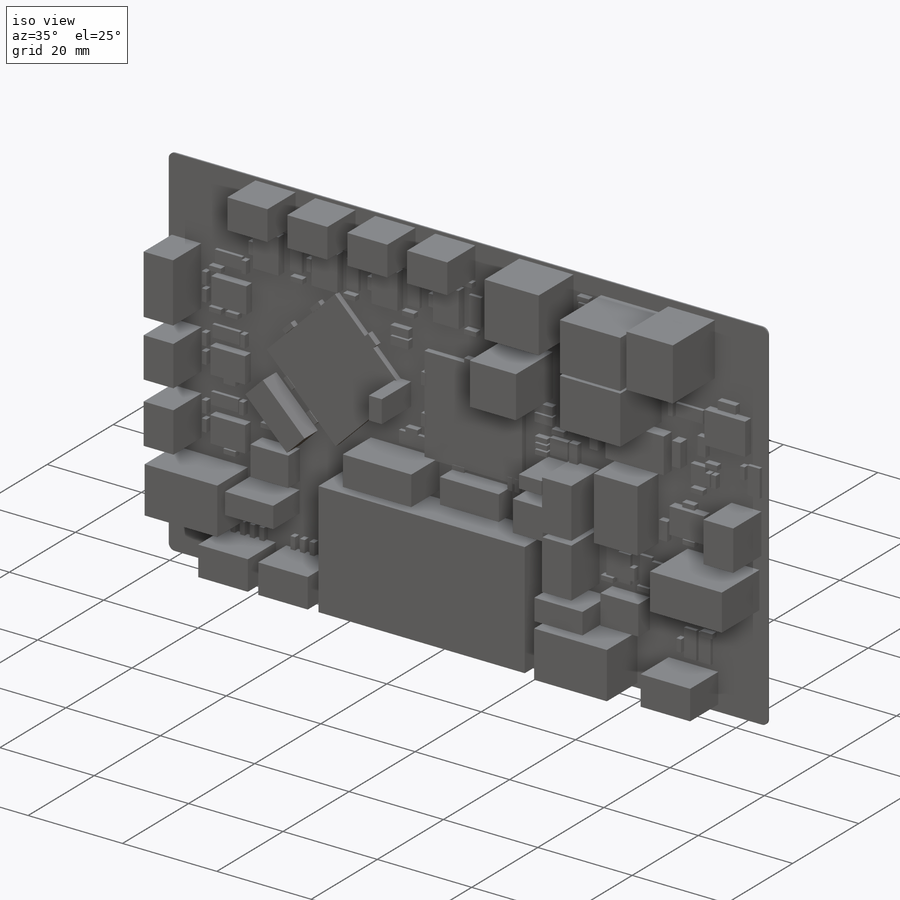
[diagram: iso view]
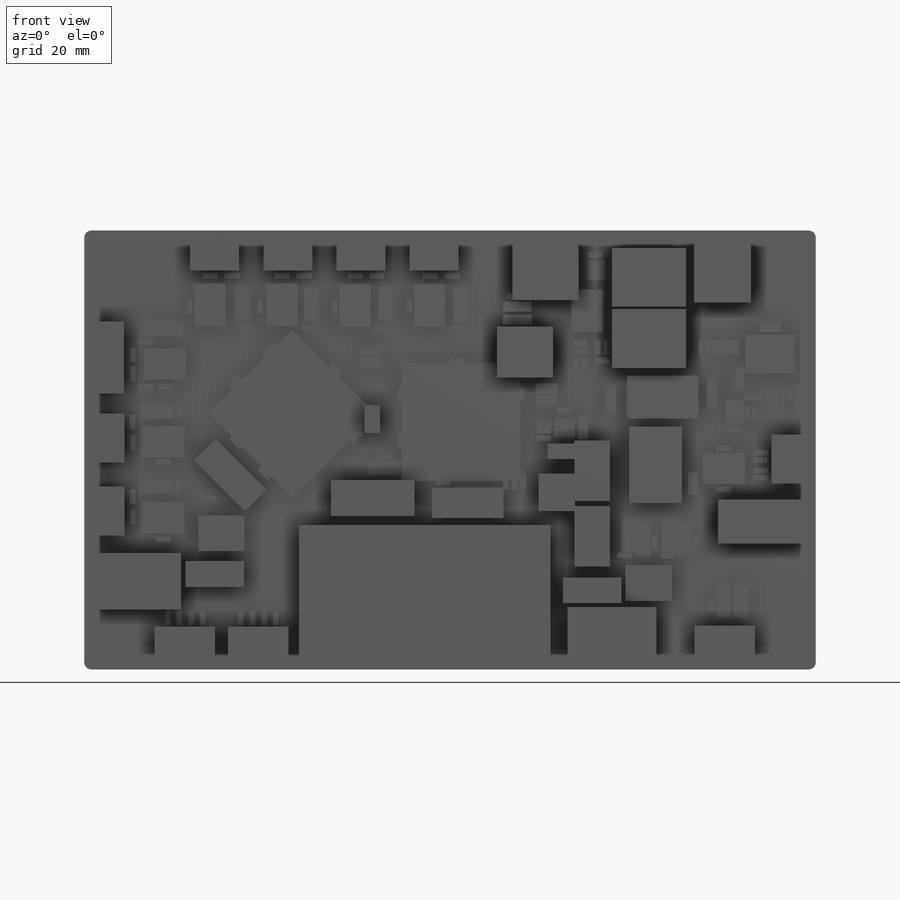
[diagram: front view]
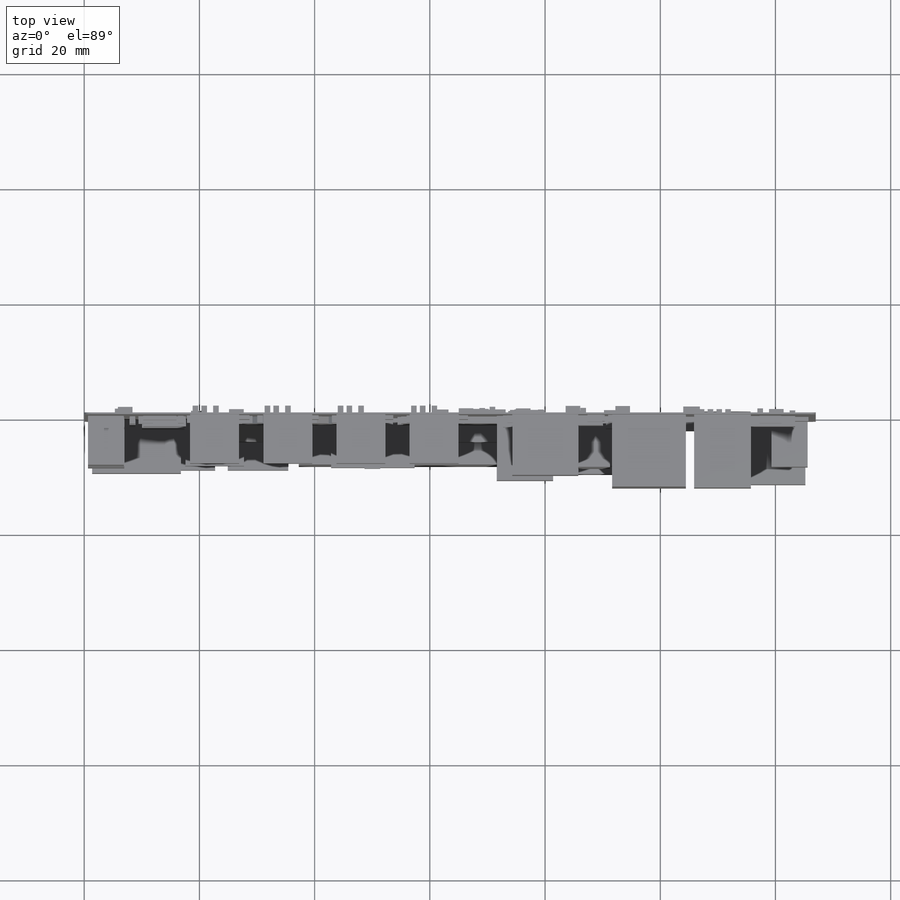
[diagram: top view]
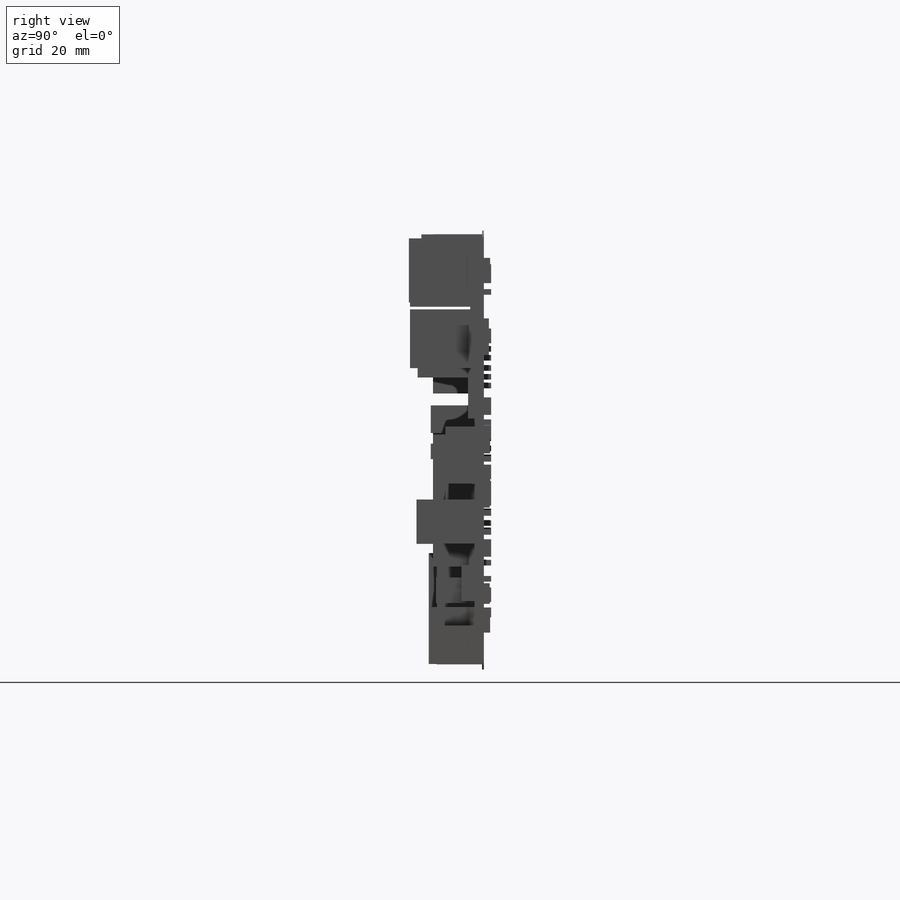
[diagram: right view]
SOLIDWORKS PART (.sldprt)
format: sldprt  version: not decoded by parser v0  size: 5,025,280 bytes
history: native  units: mm
features: sketch x245, extrude x235, material x1, plane x1 (+16 scaffold rows collapsed)
feature tree (498):
  scaffold x16  (default folders/planes/origin — collapsed)
  material  "Material <not specified>"
  sketch  "Sketch1"
  extrude  "BOARD"  Depth=0.32258mm
  plane  "Plane1"
  sketch  "Sketch2"
  extrude  "SOIC8A-1"  Depth=1.7526mm
  sketch  "Sketch3"
  extrude  "IND_MURATA_1200RS-1"  Depth=10.5156mm
  sketch  "Sketch4"
  extrude  "1206-R-1"  Depth=2.032mm
  sketch  "Sketch5"
  extrude  "1206-R-2"  Depth=2.032mm
  sketch  "Sketch6"
  extrude  "1206-R-3"  Depth=2.032mm
  sketch  "Sketch7"
  extrude  "0603-R-1"  Depth=1.27mm
  sketch  "Sketch8"
  extrude  "CAP_EL_RADIAL_8MM_5MMP-1"  Depth=11.176mm
  sketch  "Sketch9"
  extrude  "0603-R-2"  Depth=1.27mm
  sketch  "Sketch10"
  extrude  "0603-R-3"  Depth=1.27mm
  sketch  "Sketch11"
  extrude  "0603-R-4"  Depth=1.27mm
  sketch  "Sketch12"
  extrude  "0603-R-5"  Depth=1.27mm
  sketch  "Sketch13"
  extrude  "0603-R-6"  Depth=1.27mm
  sketch  "Sketch14"
  extrude  "0603-R-7"  Depth=1.27mm
  sketch  "Sketch15"
  extrude  "0603-R-8"  Depth=1.27mm
  sketch  "Sketch16"
  extrude  "0603-R-9"  Depth=1.27mm
  sketch  "Sketch17"
  extrude  "0603-R-10"  Depth=1.27mm
  sketch  "Sketch18"
  extrude  "SOT-23-1"  Depth=1.0922mm
  sketch  "Sketch19"
  extrude  "0603-R-11"  Depth=1.27mm
  sketch  "Sketch20"
  extrude  "0603-R-12"  Depth=1.27mm
  sketch  "Sketch21"
  extrude  "TO-252AA-1"  Depth=2.413mm
  sketch  "Sketch22"
  extrude  "1206-R-4"  Depth=2.032mm
  sketch  "Sketch23"
  extrude  "1206-R-5"  Depth=2.032mm
  sketch  "Sketch24"
  extrude  "0805_POL-1"  Depth=0.7112mm
  sketch  "Sketch25"
  extrude  "0603-R-13"  Depth=1.27mm
  sketch  "Sketch26"
  extrude  "CAP_EL_RAD10MM-1"  Depth=12.4968mm
  sketch  "Sketch27"
  extrude  "CAP_EL_RAD10MM-2"  Depth=12.4968mm
  sketch  "SIP-1P-1 [0]"
  sketch  "SIP-1P-2 [0]"
  sketch  "SIP-1P-3 [0]"
  sketch  "Sketch31"
  extrude  "0603-R-14"  Depth=1.27mm
  sketch  "Sketch32"
  extrude  "TQFP64_0_8-1"  Depth=1.19888mm
  sketch  "Sketch33"
  extrude  "TQFP64_0_8-2"  Depth=1.19888mm
  sketch  "Sketch34"
  extrude  "SOT223-3LAA-1"  Depth=1.8034mm
  sketch  "Sketch35"
  extrude  "0805-R-1"  Depth=1.27mm
  sketch  "Sketch36"
  extrude  "0805-R-2"  Depth=1.27mm
  sketch  "Sketch37"
  extrude  "SOT-23_DBV5-1"  Depth=1.1176mm
  sketch  "Sketch38"
  extrude  "0603-R-15"  Depth=1.27mm
  sketch  "Sketch39"
  extrude  "0603-R-16"  Depth=1.27mm
  sketch  "Sketch40"
  extrude  "0603-R-17"  Depth=1.27mm
  sketch  "Sketch41"
  extrude  "0603-R-18"  Depth=1.27mm
  sketch  "Sketch42"
  extrude  "0603-R-19"  Depth=1.27mm
  sketch  "Sketch43"
  extrude  "0603-R-20"  Depth=1.27mm
  sketch  "SIP-1P-4 [0]"
  sketch  "SIP-1P-5 [0]"
  sketch  "SIP-1P-6 [0]"
  sketch  "Sketch47"
  extrude  "0603-R-21"  Depth=1.27mm
  sketch  "Sketch48"
  extrude  "0805_POL-2"  Depth=0.7112mm
  sketch  "Sketch49"
  extrude  "0603-R-22"  Depth=1.27mm
  sketch  "Sketch50"
  extrude  "3319P-1-1"  Depth=6.35mm
  sketch  "Sketch51"
  extrude  "SOIC8-1"  Depth=1.7526mm
  sketch  "Sketch52"
  extrude  "0603-R-23"  Depth=1.27mm
  sketch  "Sketch53"
  extrude  "0603-R-24"  Depth=1.27mm
  sketch  "Sketch54"
  extrude  "0603-R-25"  Depth=1.27mm
  sketch  "Sketch55"
  extrude  "0603-R-26"  Depth=1.27mm
  sketch  "Sketch56"
  extrude  "0603-R-27"  Depth=1.27mm
  sketch  "Sketch57"
  extrude  "0603-R-28"  Depth=1.27mm
  sketch  "Sketch58"
  extrude  "0603-R-29"  Depth=1.27mm
  sketch  "Sketch59"
  extrude  "0603-R-30"  Depth=1.27mm
  sketch  "Sketch60"
  extrude  "0603-R-31"  Depth=1.27mm
  sketch  "Sketch61"
  extrude  "0603-R-32"  Depth=1.27mm
  sketch  "Sketch62"
  extrude  "0603-R-33"  Depth=1.27mm
  sketch  "Sketch63"
  extrude  "0805-R-3"  Depth=1.27mm
  sketch  "Sketch64"
  extrude  "0805_POL-3"  Depth=0.7112mm
  sketch  "Sketch65"
  extrude  "0603-R-34"  Depth=1.27mm
  sketch  "Sketch66"
  extrude  "0805_POL-4"  Depth=0.7112mm
  sketch  "Sketch67"
  extrude  "0603-R-35"  Depth=1.27mm
  sketch  "Sketch68"
  extrude  "0603-R-36"  Depth=1.27mm
  sketch  "Sketch69"
  extrude  "0805_POL-5"  Depth=0.7112mm
  sketch  "Sketch70"
  extrude  "0603-R-37"  Depth=1.27mm
  sketch  "Sketch71"
  extrude  "0603-R-38"  Depth=1.27mm
  sketch  "Sketch72"
  extrude  "0603-R-39"  Depth=1.27mm
  sketch  "Sketch73"
  extrude  "0603-R-40"  Depth=1.27mm
  sketch  "Sketch74"
  extrude  "0603-R-41"  Depth=1.27mm
  sketch  "Sketch75"
  extrude  "0805-R-4"  Depth=1.27mm
  sketch  "Sketch76"
  extrude  "0805-R-5"  Depth=1.27mm
  sketch  "Sketch77"
  extrude  "0603-R-42"  Depth=1.27mm
  sketch  "Sketch78"
  extrude  "AT49XTAL_THT-1"  Depth=4.064mm
  sketch  "Sketch79"
  extrude  "0603-R-43"  Depth=1.27mm
  sketch  "Sketch80"
  extrude  "0603-R-44"  Depth=1.27mm
  sketch  "Sketch81"
  extrude  "HDR_6P2R_100MIL_SHROUD-1"  Depth=9.2456mm
  sketch  "Sketch82"
  extrude  "SPST_6MM-1"  Depth=3.556mm
  sketch  "Sketch83"
  extrude  "0603-R-45"  Depth=1.27mm
  sketch  "Sketch84"
  extrude  "0603-R-46"  Depth=1.27mm
  sketch  "Sketch85"
  extrude  "OS_SPDT-1"  Depth=7.9756mm
  sketch  "Sketch86"
  extrude  "AT49XTAL_THT-2"  Depth=4.064mm
  sketch  "Sketch87"
  extrude  "0603-R-47"  Depth=1.27mm
  sketch  "Sketch88"
  extrude  "0603-R-48"  Depth=1.27mm
  sketch  "Sketch89"
  extrude  "0603-R-49"  Depth=1.27mm
  sketch  "Sketch90"
  extrude  "0603-R-50"  Depth=1.27mm
  sketch  "Sketch91"
  extrude  "0603-R-51"  Depth=1.27mm
  sketch  "Sketch92"
  extrude  "0603-R-52"  Depth=1.27mm
  sketch  "Sketch93"
  extrude  "0603-R-53"  Depth=1.27mm
  sketch  "Sketch94"
  extrude  "0805-R-6"  Depth=1.27mm
  sketch  "Sketch95"
  extrude  "0805-R-7"  Depth=1.27mm
  sketch  "Sketch96"
  extrude  "0603-R-54"  Depth=1.27mm
  sketch  "Sketch97"
  extrude  "0603-R-55"  Depth=1.27mm
  sketch  "Sketch98"
  extrude  "SOT-23-2"  Depth=1.0922mm
  sketch  "Sketch99"
  extrude  "0603-R-56"  Depth=1.27mm
  sketch  "Sketch100"
  extrude  "0603-R-57"  Depth=1.27mm
  sketch  "Sketch101"
  extrude  "0603-R-58"  Depth=1.27mm
  sketch  "Sketch102"
  extrude  "0603-R-59"  Depth=1.27mm
  sketch  "Sketch103"
  extrude  "0603-R-60"  Depth=1.27mm
  sketch  "Sketch104"
  extrude  "0603-R-61"  Depth=1.27mm
  sketch  "Sketch105"
  extrude  "SOIC8-2"  Depth=1.7526mm
  sketch  "Sketch106"
  extrude  "0603-R-62"  Depth=1.27mm
  sketch  "Sketch107"
  extrude  "0603-R-63"  Depth=1.27mm
  sketch  "Sketch108"
  extrude  "0603-R-64"  Depth=1.27mm
  sketch  "Sketch109"
  extrude  "0603-R-65"  Depth=1.27mm
  sketch  "Sketch110"
  extrude  "QFN-COL-16-1"  Depth=1.016mm
  sketch  "Sketch111"
  extrude  "0603-R-66"  Depth=1.27mm
  sketch  "Sketch112"
  extrude  "0603-R-67"  Depth=1.27mm
  sketch  "Sketch113"
  extrude  "0603-R-68"  Depth=1.27mm
  sketch  "Sketch114"
  extrude  "0603-R-69"  Depth=1.27mm
  sketch  "Sketch115"
  extrude  "0805-R-8"  Depth=1.27mm
  sketch  "Sketch116"
  extrude  "MSOP8-1"  Depth=0.8636mm
  sketch  "Sketch117"
  extrude  "0603-R-70"  Depth=1.27mm
  sketch  "Sketch118"
  extrude  "0603-R-71"  Depth=1.27mm
  sketch  "Sketch119"
  extrude  "0603-R-72"  Depth=1.27mm
  sketch  "Sketch120"
  extrude  "GPS15X-1"  Depth=7.8486mm
  sketch  "Sketch121"
  extrude  "HDR_SHERLOCK_6P_V-1"  Depth=8.509mm
  sketch  "Sketch122"
  extrude  "SOIC8-3"  Depth=1.7526mm
  sketch  "Sketch123"
  extrude  "0603-R-73"  Depth=1.27mm
  sketch  "Sketch124"
  extrude  "0603-R-74"  Depth=1.27mm
  sketch  "Sketch125"
  extrude  "0603-R-75"  Depth=1.27mm
  sketch  "Sketch126"
  extrude  "0603-R-76"  Depth=1.27mm
  sketch  "Sketch127"
  extrude  "0603-R-77"  Depth=1.27mm
  sketch  "Sketch128"
  extrude  "0603-R-78"  Depth=1.27mm
  sketch  "Sketch129"
  extrude  "0603-R-79"  Depth=1.27mm
  sketch  "Sketch130"
  extrude  "0603-R-80"  Depth=1.27mm
  sketch  "Sketch131"
  extrude  "0603-R-81"  Depth=1.27mm
  sketch  "Sketch132"
  extrude  "HDR_6P2R_100MIL_SHROUD-2"  Depth=9.2456mm
  sketch  "Sketch133"
  extrude  "SPST_6MM-2"  Depth=3.556mm
  sketch  "Sketch134"
  extrude  "0603-R-82"  Depth=1.27mm
  sketch  "Sketch135"
  extrude  "0603-R-83"  Depth=1.27mm
  sketch  "Sketch136"
  extrude  "OS_SPDT-2"  Depth=7.9756mm
  sketch  "Sketch137"
  extrude  "SOT-23-5-1"  Depth=1.016mm
  sketch  "Sketch138"
  extrude  "0603-R-84"  Depth=1.27mm
  sketch  "Sketch139"
  extrude  "0603-R-85"  Depth=1.27mm
  sketch  "Sketch140"
  extrude  "0603-R-86"  Depth=1.27mm
  sketch  "Sketch141"
  extrude  "0603-R-87"  Depth=1.27mm
  sketch  "Sketch142"
  extrude  "0603-R-88"  Depth=1.27mm
  sketch  "Sketch143"
  extrude  "0603-R-89"  Depth=1.27mm
  sketch  "Sketch144"
  extrude  "SOIC8-4"  Depth=1.7526mm
  sketch  "Sketch145"
  extrude  "0603-R-90"  Depth=1.27mm
  sketch  "Sketch146"
  extrude  "0603-R-91"  Depth=1.27mm
  sketch  "Sketch147"
  extrude  "0603-R-92"  Depth=1.27mm
  sketch  "Sketch148"
  extrude  "0603-R-93"  Depth=1.27mm
  sketch  "Sketch149"
  extrude  "0603-R-94"  Depth=1.27mm
  sketch  "Sketch150"
  extrude  "0603-R-95"  Depth=1.27mm
  sketch  "Sketch151"
  extrude  "SOIC8-5"  Depth=1.7526mm
  sketch  "Sketch152"
  extrude  "0603-R-96"  Depth=1.27mm
  sketch  "Sketch153"
  extrude  "0603-R-97"  Depth=1.27mm
  sketch  "Sketch154"
  extrude  "0603-R-98"  Depth=1.27mm
  sketch  "Sketch155"
  extrude  "0603-R-99"  Depth=1.27mm
  sketch  "Sketch156"
  extrude  "0603-R-100"  Depth=1.27mm
  sketch  "Sketch157"
  extrude  "0603-R-101"  Depth=1.27mm
  sketch  "Sketch158"
  extrude  "SOIC8-6"  Depth=1.7526mm
  sketch  "Sketch159"
  extrude  "0603-R-102"  Depth=1.27mm
  sketch  "Sketch160"
  extrude  "0603-R-103"  Depth=1.27mm
  sketch  "Sketch161"
  extrude  "0603-R-104"  Depth=1.27mm
  sketch  "Sketch162"
  extrude  "0603-R-105"  Depth=1.27mm
  sketch  "Sketch163"
  extrude  "0603-R-106"  Depth=1.27mm
  sketch  "Sketch164"
  extrude  "0603-R-107"  Depth=1.27mm
  sketch  "Sketch165"
  extrude  "SOIC8-7"  Depth=1.7526mm
  sketch  "Sketch166"
  extrude  "0603-R-108"  Depth=1.27mm
  sketch  "Sketch167"
  extrude  "0603-R-109"  Depth=1.27mm
  sketch  "Sketch168"
  extrude  "0603-R-110"  Depth=1.27mm
  sketch  "Sketch169"
  extrude  "0603-R-111"  Depth=1.27mm
  sketch  "Sketch170"
  extrude  "0603-R-112"  Depth=1.27mm
  sketch  "Sketch171"
  extrude  "0603-R-113"  Depth=1.27mm
  sketch  "Sketch172"
  extrude  "SOIC8-8"  Depth=1.7526mm
  sketch  "Sketch173"
  extrude  "0603-R-114"  Depth=1.27mm
  sketch  "Sketch174"
  extrude  "0603-R-115"  Depth=1.27mm
  sketch  "Sketch175"
  extrude  "0603-R-116"  Depth=1.27mm
  sketch  "Sketch176"
  extrude  "0603-R-117"  Depth=1.27mm
  sketch  "Sketch177"
  extrude  "0603-R-118"  Depth=1.27mm
  sketch  "Sketch178"
  extrude  "0603-R-119"  Depth=1.27mm
  sketch  "Sketch179"
  extrude  "0805_POL-6"  Depth=0.7112mm
  sketch  "Sketch180"
  extrude  "0805_POL-7"  Depth=0.7112mm
  sketch  "Sketch181"
  extrude  "0603-R-120"  Depth=1.27mm
  sketch  "Sketch182"
  extrude  "0603-R-121"  Depth=1.27mm
  sketch  "Sketch183"
  extrude  "0603-R-122"  Depth=1.27mm
  sketch  "Sketch184"
  extrude  "0805_POL-8"  Depth=0.7112mm
  sketch  "Sketch185"
  extrude  "0603-R-123"  Depth=1.27mm
  sketch  "Sketch186"
  extrude  "0805_POL-9"  Depth=0.7112mm
  sketch  "Sketch187"
  extrude  "HDR_MFIT_JR_2R4P_VA-1"  Depth=12.7mm
  sketch  "Sketch188"
  extrude  "HDR_SHERLOCK_5P_V-1"  Depth=8.509mm
  sketch  "Sketch189"
  extrude  "HDR_SHERLOCK_3P_V-1"  Depth=8.509mm
  sketch  "Sketch190"
  extrude  "HDR_SHERLOCK_3P_V-2"  Depth=8.509mm
  sketch  "Sketch191"
  extrude  "HDR_SHERLOCK_3P_V-3"  Depth=8.509mm
  sketch  "Sketch192"
  extrude  "HDR_SHERLOCK_3P_V-4"  Depth=8.509mm
  sketch  "Sketch193"
  extrude  "HDR_SHERLOCK_3P_V-5"  Depth=8.509mm
  sketch  "Sketch194"
  extrude  "HDR_SHERLOCK_3P_V-6"  Depth=8.509mm
  sketch  "Sketch195"
  extrude  "PHONE_JACK_KOBICONN_161-352N-EX-1"  Depth=11.3792mm
  sketch  "Sketch196"
  extrude  "0603-R-124"  Depth=1.27mm
  sketch  "Sketch197"
  extrude  "HDR_SHERLOCK_3P_V-7"  Depth=8.509mm
  sketch  "Sketch198"
  extrude  "0603-R-125"  Depth=1.27mm
  sketch  "Sketch199"
  extrude  "0603-R-126"  Depth=1.27mm
  sketch  "Sketch200"
  extrude  "HDR_SHERLOCK_4P_V-1"  Depth=8.509mm
  sketch  "Sketch201"
  extrude  "0603-R-127"  Depth=1.27mm
  sketch  "Sketch202"
  extrude  "0603-R-128"  Depth=1.27mm
  sketch  "Sketch203"
  extrude  "0603-R-129"  Depth=1.27mm
  sketch  "Sketch204"
  extrude  "HDR_2P1R_100MIL-1"  Depth=8.89mm
  sketch  "Sketch205"
  extrude  "HDR_2P1R_100MIL-2"  Depth=8.89mm
  sketch  "Sketch206"
  extrude  "0805_POL-10"  Depth=0.7112mm
  sketch  "Sketch207"
  extrude  "0805_POL-11"  Depth=0.7112mm
  sketch  "Sketch208"
  extrude  "0603-R-130"  Depth=1.27mm
  sketch  "Sketch209"
  extrude  "0603-R-131"  Depth=1.27mm
  sketch  "Sketch210"
  extrude  "0603-R-132"  Depth=1.27mm
  sketch  "Sketch211"
  extrude  "0805_POL-12"  Depth=0.7112mm
  sketch  "Sketch212"
  extrude  "0603-R-133"  Depth=1.27mm
  sketch  "Sketch213"
  extrude  "0805_POL-13"  Depth=0.7112mm
  sketch  "Sketch214"
  extrude  "0603-R-134"  Depth=1.27mm
  sketch  "Sketch215"
  extrude  "0805_POL-14"  Depth=0.7112mm
  sketch  "Sketch216"
  extrude  "0603-R-135"  Depth=1.27mm
  sketch  "Sketch217"
  extrude  "0805_POL-15"  Depth=0.7112mm
  sketch  "Sketch218"
  extrude  "0603-R-136"  Depth=1.27mm
  sketch  "Sketch219"
  extrude  "0805_POL-16"  Depth=0.7112mm
  sketch  "Sketch220"
  extrude  "0805-R-9"  Depth=1.27mm
  sketch  "Sketch221"
  extrude  "0805-R-10"  Depth=1.27mm
  sketch  "Sketch222"
  extrude  "HDR_SHERLOCK_4P_V-2"  Depth=8.509mm
  sketch  "Sketch223"
  extrude  "SSOT-6-1"  Depth=1.016mm
  sketch  "Sketch224"
  extrude  "0603-R-137"  Depth=1.27mm
  sketch  "Sketch225"
  extrude  "HDR_SHERLOCK_4P_V-3"  Depth=8.509mm
  sketch  "Sketch226"
  extrude  "HDR_SHERLOCK_2P_V-1"  Depth=8.509mm
  sketch  "Sketch227"
  extrude  "SOT-23-3"  Depth=1.0922mm
  sketch  "Sketch228"
  extrude  "HDR_SHERLOCK_4P_V-4"  Depth=8.509mm
  sketch  "Sketch229"
  extrude  "0603-R-138"  Depth=1.27mm
  sketch  "Sketch230"
  extrude  "0603-R-139"  Depth=1.27mm
  sketch  "Sketch231"
  extrude  "0603-R-140"  Depth=1.27mm
  sketch  "Sketch232"
  extrude  "0603-R-141"  Depth=1.27mm
  sketch  "Sketch233"
  extrude  "0603-R-142"  Depth=1.27mm
  sketch  "Sketch234"
  extrude  "0603-R-143"  Depth=1.27mm
  sketch  "Sketch235"
  extrude  "0603-R-144"  Depth=1.27mm
  sketch  "Sketch236"
  extrude  "0603-R-145"  Depth=1.27mm
  sketch  "Sketch237"
  extrude  "SOT-23-4"  Depth=1.0922mm
  sketch  "Sketch238"
  extrude  "HDR_SHERLOCK_4P_V-5"  Depth=8.509mm
  sketch  "PLATED_HOLE__6-1 [0]"
  sketch  "PLATED_HOLE__6-2 [0]"
  sketch  "PLATED_HOLE__6-3 [0]"
  sketch  "PLATED_HOLE__6-4 [0]"
  sketch  "Sketch243"
  extrude  "SOT-23-5"  Depth=1.0922mm
  sketch  "Sketch244"
  extrude  "0603-R-146"  Depth=1.27mm
  sketch  "Sketch245"
  extrude  "0603-R-147"  Depth=1.27mm
decode coverage: 235 of 480 modeling features carry decoded parameters
note: suppression state not decoded; provenance and decode notes live in map.json
